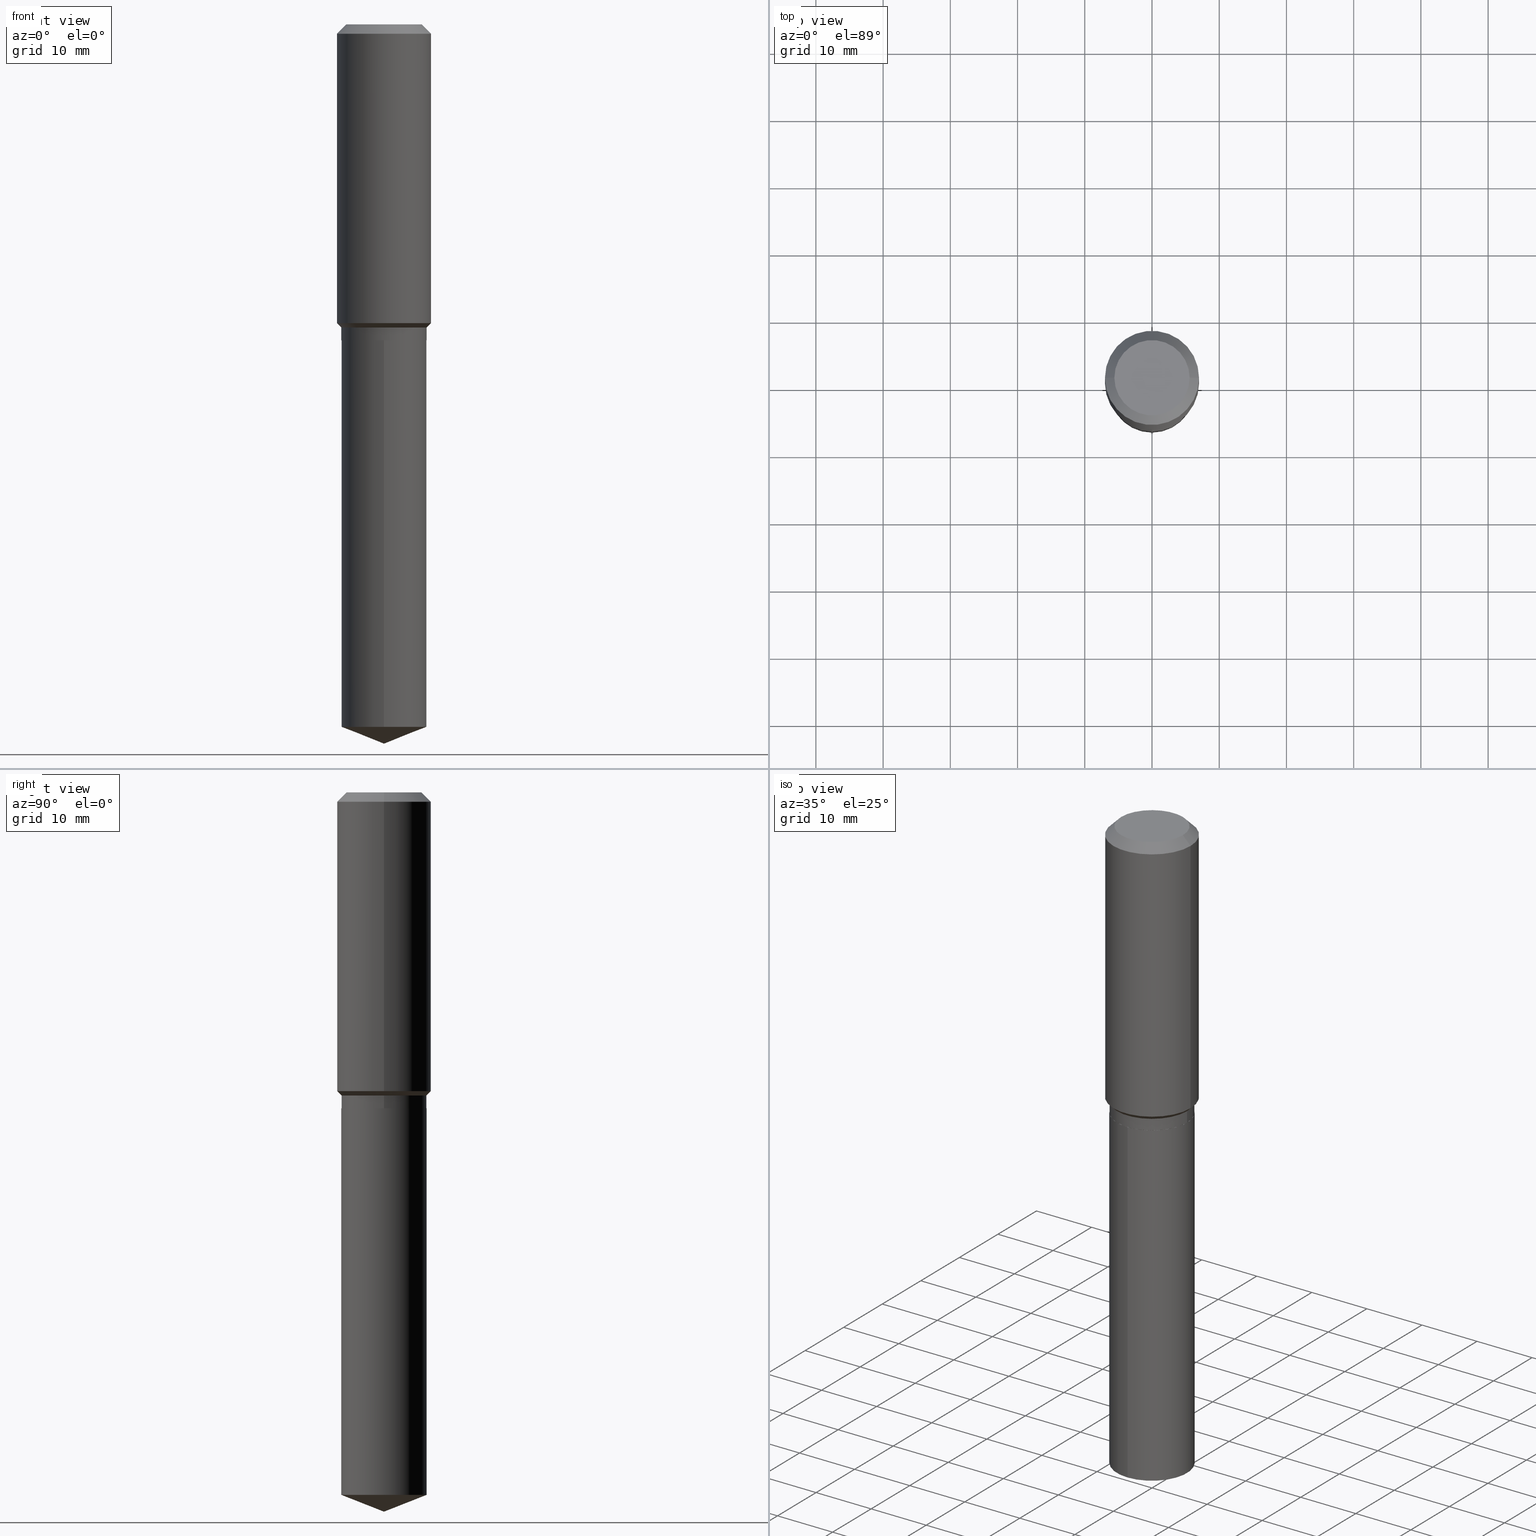
[diagram: canonical four-view strip — front | top / right | iso, engineering-drawing reading convention]
A machine part, canonical four-view strip (front | top / right | iso — engineering-drawing reading convention). The complete STEP part file that produces these views, byte-faithful:
ISO-10303-21;
HEADER;
FILE_DESCRIPTION (( 'STEP AP203' ),
    '1' );
FILE_NAME ('56428.STEP',
    '2024-04-24T17:35:44',
    ( '' ),
    ( '' ),
    'SwSTEP 2.0',
    'SolidWorks 2023',
    '' );
FILE_SCHEMA (( 'CONFIG_CONTROL_DESIGN' ));
ENDSEC;

DATA;
#1 = ADVANCED_FACE ( 'NONE', ( #217 ), #359, .F. ) ;
#2 = FACE_OUTER_BOUND ( 'NONE', #81, .T. ) ;
#3 = CARTESIAN_POINT ( 'NONE',  ( 4.523872744561885153E-29, -6.458891328725936072E-15, -1.849900000000000322 ) ) ;
#4 = AXIS2_PLACEMENT_3D ( 'NONE', #307, #468, #281 ) ;
#5 = PERSON_AND_ORGANIZATION ( #222, #179 ) ;
#6 = DIRECTION ( 'NONE',  ( -2.445468806185136597E-29, 3.491481338843145583E-15, 1.000000000000000000 ) ) ;
#7 = CIRCLE ( 'NONE', #136, 0.2500000000000000000 ) ;
#8 = DIRECTION ( 'NONE',  ( -2.445311511175715236E-29, 3.491706594249313173E-15, 1.000000000000000000 ) ) ;
#9 = EDGE_CURVE ( 'NONE', #241, #478, #135, .T. ) ;
#10 = CARTESIAN_POINT ( 'NONE',  ( 1.347942405969256063E-30, -1.924504513970354330E-16, -0.05512000000000035621 ) ) ;
#11 = VERTEX_POINT ( 'NONE', #286 ) ;
#12 = CARTESIAN_POINT ( 'NONE',  ( 0.2500000000000000555, -8.204631998147503539E-15, -1.849900000000000322 ) ) ;
#13 = DIRECTION ( 'NONE',  ( -0.7071067811866441621, 7.493145998870704414E-15, 0.7071067811864508723 ) ) ;
#14 = VERTEX_POINT ( 'NONE', #218 ) ;
#15 = DIRECTION ( 'NONE',  ( -2.445311511175715236E-29, 3.491706594249313173E-15, 1.000000000000000000 ) ) ;
#16 = DATE_AND_TIME ( #247, #114 ) ;
#17 = AXIS2_PLACEMENT_3D ( 'NONE', #377, #461, #45 ) ;
#18 = AXIS2_PLACEMENT_3D ( 'NONE', #348, #174, #229 ) ;
#19 = ORIENTED_EDGE ( 'NONE', *, *, #485, .T. ) ;
#20 = LINE ( 'NONE', #142, #196 ) ;
#21 = ORIENTED_EDGE ( 'NONE', *, *, #322, .T. ) ;
#22 = AXIS2_PLACEMENT_3D ( 'NONE', #256, #446, #402 ) ;
#23 = AXIS2_PLACEMENT_3D ( 'NONE', #232, #195, #308 ) ;
#24 = EDGE_LOOP ( 'NONE', ( #119, #309, #425, #421 ) ) ;
#25 = EDGE_CURVE ( 'NONE', #467, #432, #253, .T. ) ;
#26 = APPROVAL_DATE_TIME ( #252, #28 ) ;
#27 = CARTESIAN_POINT ( 'NONE',  ( 0.2756000000000001227, -1.924504513970336137E-15, 1.343874319409360548E-29 ) ) ;
#28 = APPROVAL ( #320, 'UNSPECIFIED' ) ;
#29 = VECTOR ( 'NONE', #488, 39.37007874015748143 ) ;
#30 = ADVANCED_FACE ( 'NONE', ( #355 ), #194, .T. ) ;
#31 = LINE ( 'NONE', #75, #160 ) ;
#32 = FACE_OUTER_BOUND ( 'NONE', #352, .T. ) ;
#33 =( NAMED_UNIT ( * ) PLANE_ANGLE_UNIT ( ) SI_UNIT ( $, .RADIAN. ) );
#34 = CC_DESIGN_SECURITY_CLASSIFICATION ( #215, ( #71 ) ) ;
#35 = AXIS2_PLACEMENT_3D ( 'NONE', #445, #104, #351 ) ;
#36 = FACE_OUTER_BOUND ( 'NONE', #167, .T. ) ;
#37 = AXIS2_PLACEMENT_3D ( 'NONE', #321, #361, #401 ) ;
#38 = FACE_OUTER_BOUND ( 'NONE', #92, .T. ) ;
#39 = DIRECTION ( 'NONE',  ( 1.000000000000000000, -6.982962677686265133E-15, 0.000000000000000000 ) ) ;
#40 = DIRECTION ( 'NONE',  ( 0.7071067811865453523, -7.319954787623248157E-15, -0.7071067811865496822 ) ) ;
#41 = APPLICATION_CONTEXT ( 'configuration controlled 3d designs of mechanical parts and assemblies' ) ;
#42 = CARTESIAN_POINT ( 'NONE',  ( 1.347942405969256063E-30, -1.924504513970354330E-16, -0.05512000000000035621 ) ) ;
#43 = DIRECTION ( 'NONE',  ( 6.982962677686265922E-15, 1.000000000000000000, -3.491706594249313568E-15 ) ) ;
#44 = ORIENTED_EDGE ( 'NONE', *, *, #372, .T. ) ;
#45 = DIRECTION ( 'NONE',  ( 1.000000000000000000, -6.982962677686265922E-15, 4.876176775795935793E-29 ) ) ;
#46 = CC_DESIGN_PERSON_AND_ORGANIZATION_ASSIGNMENT ( #389, #58, ( #178 ) ) ;
#47 = VECTOR ( 'NONE', #466, 39.37007874015748143 ) ;
#48 = APPROVAL_STATUS ( 'not_yet_approved' ) ;
#49 = CARTESIAN_POINT ( 'NONE',  ( -0.2494999999999999996, -4.687832943673907221E-15, -1.850400000000000267 ) ) ;
#50 = CARTESIAN_POINT ( 'NONE',  ( 4.341685318501092485E-29, -6.198775968982121785E-15, -1.775400000000000311 ) ) ;
#51 = VERTEX_POINT ( 'NONE', #358 ) ;
#52 = CARTESIAN_POINT ( 'NONE',  ( -8.597069640853713497E-28, 1.227600171667914887E-13, 35.15747874015747954 ) ) ;
#53 = ORIENTED_EDGE ( 'NONE', *, *, #330, .T. ) ;
#54 = CARTESIAN_POINT ( 'NONE',  ( 0.2756000000000000116, -2.083203699582869812E-15, -0.05512000000000035621 ) ) ;
#55 = EDGE_CURVE ( 'NONE', #478, #409, #463, .T. ) ;
#56 = ORIENTED_EDGE ( 'NONE', *, *, #480, .F. ) ;
#57 = CARTESIAN_POINT ( 'NONE',  ( 4.525095478964977394E-29, -6.460637069395357576E-15, -1.850400000000000267 ) ) ;
#58 = PERSON_AND_ORGANIZATION_ROLE ( 'design_owner' ) ;
#59 = CARTESIAN_POINT ( 'NONE',  ( -0.2756000000000000116, -1.192666469297548903E-15, -0.05512000000000035621 ) ) ;
#60 = CARTESIAN_POINT ( 'NONE',  ( 0.000000000000000000, 0.000000000000000000, 0.000000000000000000 ) ) ;
#61 = CIRCLE ( 'NONE', #259, 0.2204800000000000093 ) ;
#62 = CYLINDRICAL_SURFACE ( 'NONE', #37, 0.2500000000000000000 ) ;
#63 = ORIENTED_EDGE ( 'NONE', *, *, #109, .F. ) ;
#64 = CARTESIAN_POINT ( 'NONE',  ( 4.525095478964977394E-29, -6.460637069395357576E-15, -1.850400000000000267 ) ) ;
#65 = VERTEX_POINT ( 'NONE', #111 ) ;
#66 =( CONVERSION_BASED_UNIT ( 'INCH', #275 ) LENGTH_UNIT ( ) NAMED_UNIT ( #305 ) );
#67 = APPROVAL_PERSON_ORGANIZATION ( #193, #28, #311 ) ;
#68 = EDGE_LOOP ( 'NONE', ( #481, #233, #284, #342 ) ) ;
#69 = DIRECTION ( 'NONE',  ( -6.982962677686265922E-15, -1.000000000000000000, 4.370956789862821150E-15 ) ) ;
#70 = ADVANCED_FACE ( 'NONE', ( #32 ), #406, .T. ) ;
#71 = PRODUCT_DEFINITION_FORMATION_WITH_SPECIFIED_SOURCE ( 'ANY', '', #178, .NOT_KNOWN. ) ;
#72 = CC_DESIGN_PERSON_AND_ORGANIZATION_ASSIGNMENT ( #267, #131, ( #71 ) ) ;
#73 = VECTOR ( 'NONE', #454, 39.37007874015748143 ) ;
#74 = AXIS2_PLACEMENT_3D ( 'NONE', #158, #127, #459 ) ;
#75 = CARTESIAN_POINT ( 'NONE',  ( -0.2756000000000001227, 1.958255779754836984E-15, -1.355658510874252567E-29 ) ) ;
#76 = CC_DESIGN_APPROVAL ( #28, ( #215 ) ) ;
#77 = CALENDAR_DATE ( 2024, 24, 4 ) ;
#78 = VECTOR ( 'NONE', #242, 39.37007874015748854 ) ;
#79 = CONICAL_SURFACE ( 'NONE', #347, 99.94676754583932166, 1.195550537616117293 ) ;
#80 =( NAMED_UNIT ( * ) SI_UNIT ( $, .STERADIAN. ) SOLID_ANGLE_UNIT ( ) );
#81 = EDGE_LOOP ( 'NONE', ( #212, #418, #436, #333 ) ) ;
#82 = ADVANCED_FACE ( 'NONE', ( #2 ), #153, .T. ) ;
#83 = DIRECTION ( 'NONE',  ( -6.982962677686265922E-15, -1.000000000000000000, 3.498627837350027099E-15 ) ) ;
#84 = ORIENTED_EDGE ( 'NONE', *, *, #157, .F. ) ;
#85 = APPROVAL_ROLE ( '' ) ;
#86 = DIRECTION ( 'NONE',  ( -2.445311511175715236E-29, 3.491706594249313173E-15, 1.000000000000000000 ) ) ;
#87 = CARTESIAN_POINT ( 'NONE',  ( 1.030111927197881828E-28, -1.470916319893465635E-14, -4.212600000000000122 ) ) ;
#88 = ORIENTED_EDGE ( 'NONE', *, *, #322, .F. ) ;
#89 = CIRCLE ( 'NONE', #484, 0.2500000000000000555 ) ;
#90 = DIRECTION ( 'NONE',  ( 1.000000000000000000, -6.982962677686267499E-15, 0.000000000000000000 ) ) ;
#91 = CC_DESIGN_APPROVAL ( #204, ( #71 ) ) ;
#92 = EDGE_LOOP ( 'NONE', ( #317, #188 ) ) ;
#93 = DATE_AND_TIME ( #433, #180 ) ;
#94 = DIRECTION ( 'NONE',  ( -2.445468806185136597E-29, 3.491481338843145583E-15, 1.000000000000000000 ) ) ;
#95 = ORIENTED_EDGE ( 'NONE', *, *, #327, .F. ) ;
#96 = FACE_OUTER_BOUND ( 'NONE', #24, .T. ) ;
#97 = CARTESIAN_POINT ( 'NONE',  ( 1.030170649383189397E-28, -1.470832957372751352E-14, -4.212600000000000122 ) ) ;
#98 = VERTEX_POINT ( 'NONE', #369 ) ;
#99 = PERSON_AND_ORGANIZATION ( #222, #179 ) ;
#100 = CIRCLE ( 'NONE', #367, 0.2500000000000000555 ) ;
#101 = AXIS2_PLACEMENT_3D ( 'NONE', #10, #166, #410 ) ;
#102 = ORIENTED_EDGE ( 'NONE', *, *, #55, .F. ) ;
#103 = CARTESIAN_POINT ( 'NONE',  ( 0.2494999999999999996, -8.202886257478081246E-15, -1.850400000000000267 ) ) ;
#104 = DIRECTION ( 'NONE',  ( -2.445311511175715236E-29, 3.491706594249313173E-15, 1.000000000000000000 ) ) ;
#105 = DESIGN_CONTEXT ( 'detailed design', #41, 'design' ) ;
#106 = DIRECTION ( 'NONE',  ( -2.445468806185136597E-29, 3.491481338843145583E-15, 1.000000000000000000 ) ) ;
#107 = CIRCLE ( 'NONE', #314, 0.2500000000000000000 ) ;
#108 = CARTESIAN_POINT ( 'NONE',  ( 4.525095478964977394E-29, -6.460637069395357576E-15, -1.850400000000000267 ) ) ;
#109 = EDGE_CURVE ( 'NONE', #11, #409, #100, .T. ) ;
#110 = SHAPE_DEFINITION_REPRESENTATION ( #435, #184 ) ;
#111 = CARTESIAN_POINT ( 'NONE',  ( 0.2756000000000002337, -8.033898560678073390E-15, -1.749800000000000244 ) ) ;
#112 = LOCAL_TIME ( 13, 35, 44.00000000000000000, #197 ) ;
#113 = CIRCLE ( 'NONE', #74, 0.2494999999999999996 ) ;
#114 = LOCAL_TIME ( 13, 35, 44.00000000000000000, #473 ) ;
#115 = ADVANCED_FACE ( 'NONE', ( #38 ), #301, .F. ) ;
#116 = ORIENTED_EDGE ( 'NONE', *, *, #278, .T. ) ;
#117 = CARTESIAN_POINT ( 'NONE',  ( 0.2500000000000000000, -7.944516638403687674E-15, -1.775400000000000311 ) ) ;
#118 = CARTESIAN_POINT ( 'NONE',  ( 4.523872744561885153E-29, -6.458891328725936072E-15, -1.849900000000000322 ) ) ;
#119 = ORIENTED_EDGE ( 'NONE', *, *, #187, .F. ) ;
#120 = PLANE ( 'NONE',  #303 ) ;
#121 = CYLINDRICAL_SURFACE ( 'NONE', #219, 0.2500000000000000000 ) ;
#122 = VERTEX_POINT ( 'NONE', #163 ) ;
#123 = AXIS2_PLACEMENT_3D ( 'NONE', #108, #489, #405 ) ;
#124 = DIRECTION ( 'NONE',  ( -2.445468806185136597E-29, 3.491481338843145583E-15, 1.000000000000000000 ) ) ;
#125 = CONICAL_SURFACE ( 'NONE', #285, 99.94676754583932166, 1.195550537616117293 ) ;
#126 = EDGE_CURVE ( 'NONE', #122, #98, #246, .T. ) ;
#127 = DIRECTION ( 'NONE',  ( -2.445468806185136597E-29, 3.491481338843145583E-15, 1.000000000000000000 ) ) ;
#128 = CARTESIAN_POINT ( 'NONE',  ( -8.597069640853713497E-28, 1.227600171667914887E-13, 35.15747874015747954 ) ) ;
#129 = DIRECTION ( 'NONE',  ( -6.982962677686265922E-15, -1.000000000000000000, 3.278217592397115862E-15 ) ) ;
#130 = ORIENTED_EDGE ( 'NONE', *, *, #251, .T. ) ;
#131 = PERSON_AND_ORGANIZATION_ROLE ( 'design_supplier' ) ;
#132 = DIRECTION ( 'NONE',  ( -1.000000000000000000, 6.982962677686269077E-15, 0.000000000000000000 ) ) ;
#133 = ORIENTED_EDGE ( 'NONE', *, *, #202, .F. ) ;
#134 = CC_DESIGN_APPROVAL ( #356, ( #450 ) ) ;
#135 = CIRCLE ( 'NONE', #123, 0.2494999999999999996 ) ;
#136 = AXIS2_PLACEMENT_3D ( 'NONE', #264, #15, #315 ) ;
#137 = ORIENTED_EDGE ( 'NONE', *, *, #291, .T. ) ;
#138 = EDGE_CURVE ( 'NONE', #241, #11, #387, .T. ) ;
#139 = FACE_OUTER_BOUND ( 'NONE', #68, .T. ) ;
#140 = VERTEX_POINT ( 'NONE', #198 ) ;
#141 = CYLINDRICAL_SURFACE ( 'NONE', #254, 0.2756000000000001227 ) ;
#142 = CARTESIAN_POINT ( 'NONE',  ( 0.2500000000000000000, -1.745740669421566678E-15, 1.219044193948983948E-29 ) ) ;
#143 = ORIENTED_EDGE ( 'NONE', *, *, #138, .F. ) ;
#144 = DIRECTION ( 'NONE',  ( 1.000000000000000000, -6.982962677686267499E-15, 4.876176775795935793E-29 ) ) ;
#145 = EDGE_CURVE ( 'NONE', #140, #65, #392, .T. ) ;
#146 = CIRCLE ( 'NONE', #407, 0.2756000000000002337 ) ;
#147 = MANIFOLD_SOLID_BREP ( 'Body-Move/Copy2[2]', #272 ) ;
#148 = CC_DESIGN_PERSON_AND_ORGANIZATION_ASSIGNMENT ( #236, #340, ( #215 ) ) ;
#149 = ORIENTED_EDGE ( 'NONE', *, *, #299, .F. ) ;
#150 = ADVANCED_FACE ( 'NONE', ( #271 ), #429, .T. ) ;
#151 = AXIS2_PLACEMENT_3D ( 'NONE', #235, #169, #336 ) ;
#152 = APPROVAL_PERSON_ORGANIZATION ( #248, #356, #395 ) ;
#153 = CYLINDRICAL_SURFACE ( 'NONE', #295, 0.2500000000000000000 ) ;
#154 = CONICAL_SURFACE ( 'NONE', #431, 0.2494999999999999996, 0.7853981633975849475 ) ;
#155 = DIRECTION ( 'NONE',  ( -2.445468806185136877E-29, 3.491481338843145188E-15, 1.000000000000000000 ) ) ;
#156 = ORIENTED_EDGE ( 'NONE', *, *, #126, .T. ) ;
#157 = EDGE_CURVE ( 'NONE', #297, #98, #332, .T. ) ;
#158 = CARTESIAN_POINT ( 'NONE',  ( 4.525095478964977394E-29, -6.460637069395357576E-15, -1.850400000000000267 ) ) ;
#159 = AXIS2_PLACEMENT_3D ( 'NONE', #357, #213, #175 ) ;
#160 = VECTOR ( 'NONE', #155, 39.37007874015748143 ) ;
#161 = LINE ( 'NONE', #54, #324 ) ;
#162 = ORIENTED_EDGE ( 'NONE', *, *, #55, .T. ) ;
#163 = CARTESIAN_POINT ( 'NONE',  ( 1.030111927197881828E-28, -1.470916319893465635E-14, -4.212600000000000122 ) ) ;
#164 = CALENDAR_DATE ( 2024, 24, 4 ) ;
#165 = DIRECTION ( 'NONE',  ( -2.445468806185136597E-29, 3.491481338843145583E-15, 1.000000000000000000 ) ) ;
#166 = DIRECTION ( 'NONE',  ( -2.445468806185136597E-29, 3.491481338843145583E-15, 1.000000000000000000 ) ) ;
#167 = EDGE_LOOP ( 'NONE', ( #130, #472, #438, #102 ) ) ;
#168 = CARTESIAN_POINT ( 'NONE',  ( 1.776356839400351044E-15, 0.2499999999999935052, -1.850400000000001155 ) ) ;
#169 = DIRECTION ( 'NONE',  ( -2.445468806185136597E-29, 3.491481338843145583E-15, 1.000000000000000000 ) ) ;
#170 = EDGE_CURVE ( 'NONE', #65, #51, #400, .T. ) ;
#171 = ORIENTED_EDGE ( 'NONE', *, *, #126, .F. ) ;
#172 = AXIS2_PLACEMENT_3D ( 'NONE', #64, #349, #343 ) ;
#173 = ORIENTED_EDGE ( 'NONE', *, *, #177, .T. ) ;
#174 = DIRECTION ( 'NONE',  ( 2.445468806185136597E-29, -3.491481338843145583E-15, -1.000000000000000000 ) ) ;
#175 = DIRECTION ( 'NONE',  ( 1.000000000000000000, -6.982962677686266711E-15, 0.000000000000000000 ) ) ;
#176 = ORIENTED_EDGE ( 'NONE', *, *, #456, .F. ) ;
#177 = EDGE_CURVE ( 'NONE', #329, #338, #364, .T. ) ;
#178 = PRODUCT ( '56428', '56428', '', ( #341 ) ) ;
#179 = ORGANIZATION ( 'UNSPECIFIED', 'UNSPECIFIED', '' ) ;
#180 = LOCAL_TIME ( 13, 35, 44.00000000000000000, #339 ) ;
#181 = EDGE_CURVE ( 'NONE', #329, #65, #282, .T. ) ;
#182 = AXIS2_PLACEMENT_3D ( 'NONE', #294, #328, #263 ) ;
#183 = ADVANCED_FACE ( 'NONE', ( #424 ), #79, .T. ) ;
#184 = ADVANCED_BREP_SHAPE_REPRESENTATION ( '56428', ( #287, #147, #185 ), #319 ) ;
#185 = AXIS2_PLACEMENT_3D ( 'NONE', #60, #487, #448 ) ;
#186 = COORDINATED_UNIVERSAL_TIME_OFFSET ( 5, 0, .BEHIND. ) ;
#187 = EDGE_CURVE ( 'NONE', #14, #190, #452, .T. ) ;
#188 = ORIENTED_EDGE ( 'NONE', *, *, #9, .F. ) ;
#189 = CARTESIAN_POINT ( 'NONE',  ( 4.525095478964977954E-29, -6.460637069395358365E-15, -1.850400000000000489 ) ) ;
#190 = VERTEX_POINT ( 'NONE', #469 ) ;
#191 = DIRECTION ( 'NONE',  ( 2.445468806185136597E-29, -3.491481338843145583E-15, -1.000000000000000000 ) ) ;
#192 = DIRECTION ( 'NONE',  ( 2.445311511175714395E-29, -3.491706594249313568E-15, -1.000000000000000000 ) ) ;
#193 = PERSON_AND_ORGANIZATION ( #222, #179 ) ;
#194 = CONICAL_SURFACE ( 'NONE', #430, 0.2500000000000000000, 0.7853981633974502774 ) ;
#195 = DIRECTION ( 'NONE',  ( -2.445468806185136597E-29, 3.491481338843145583E-15, 1.000000000000000000 ) ) ;
#196 = VECTOR ( 'NONE', #396, 39.37007874015748143 ) ;
#197 = COORDINATED_UNIVERSAL_TIME_OFFSET ( 5, 0, .BEHIND. ) ;
#198 = CARTESIAN_POINT ( 'NONE',  ( -0.2756000000000002337, -4.151138266952899480E-15, -1.749800000000000244 ) ) ;
#199 = APPROVAL_DATE_TIME ( #325, #204 ) ;
#200 = DIRECTION ( 'NONE',  ( -2.445468806185136597E-29, 3.491481338843145583E-15, 1.000000000000000000 ) ) ;
#201 = ORIENTED_EDGE ( 'NONE', *, *, #25, .T. ) ;
#202 = EDGE_CURVE ( 'NONE', #122, #297, #426, .T. ) ;
#203 = EDGE_LOOP ( 'NONE', ( #171, #386, #399 ) ) ;
#204 = APPROVAL ( #374, 'UNSPECIFIED' ) ;
#205 = ORIENTED_EDGE ( 'NONE', *, *, #9, .T. ) ;
#206 = VECTOR ( 'NONE', #371, 39.37007874015748143 ) ;
#207 = CARTESIAN_POINT ( 'NONE',  ( -1.745740669421521318E-15, -0.2500000000000064393, -1.850399999999999379 ) ) ;
#208 = LINE ( 'NONE', #318, #360 ) ;
#209 = EDGE_CURVE ( 'NONE', #338, #329, #464, .T. ) ;
#210 = EDGE_LOOP ( 'NONE', ( #133, #156, #84 ) ) ;
#211 = DATE_TIME_ROLE ( 'classification_date' ) ;
#212 = ORIENTED_EDGE ( 'NONE', *, *, #157, .T. ) ;
#213 = DIRECTION ( 'NONE',  ( -2.445468806185136597E-29, 3.491481338843145583E-15, 1.000000000000000000 ) ) ;
#214 = CONICAL_SURFACE ( 'NONE', #18, 0.2756000000000000116, 0.7853981633974452814 ) ;
#215 = SECURITY_CLASSIFICATION ( '', '', #443 ) ;
#216 = EDGE_CURVE ( 'NONE', #51, #458, #296, .T. ) ;
#217 = FACE_OUTER_BOUND ( 'NONE', #225, .T. ) ;
#218 = CARTESIAN_POINT ( 'NONE',  ( 0.2204800000000000093, -1.797903149065768707E-15, 3.860086710924123164E-18 ) ) ;
#219 = AXIS2_PLACEMENT_3D ( 'NONE', #376, #165, #300 ) ;
#220 = EDGE_CURVE ( 'NONE', #140, #458, #31, .T. ) ;
#221 = CARTESIAN_POINT ( 'NONE',  ( -0.2494999999999999996, -4.685183716499796809E-15, -1.850400000000000267 ) ) ;
#222 = PERSON ( 'UNSPECIFIED', 'UNSPECIFIED', 'UNSPECIFIED', ('UNSPECIFIED'), ('UNSPECIFIED'), ('UNSPECIFIED') ) ;
#223 = DIRECTION ( 'NONE',  ( -2.445311511175715516E-29, 3.491706594249313568E-15, 1.000000000000000000 ) ) ;
#224 = ORIENTED_EDGE ( 'NONE', *, *, #291, .F. ) ;
#225 = EDGE_LOOP ( 'NONE', ( #21, #228 ) ) ;
#226 = DIRECTION ( 'NONE',  ( -2.445311511175715236E-29, 3.491706594249313173E-15, 1.000000000000000000 ) ) ;
#227 = DIRECTION ( 'NONE',  ( -0.7071067811865489050, 7.493145998870358893E-15, 0.7071067811865461294 ) ) ;
#228 = ORIENTED_EDGE ( 'NONE', *, *, #187, .T. ) ;
#229 = DIRECTION ( 'NONE',  ( -1.000000000000000000, 6.982962677686269077E-15, 0.000000000000000000 ) ) ;
#230 = DIRECTION ( 'NONE',  ( 1.000000000000000000, -6.982962677686267499E-15, 4.876176775795935793E-29 ) ) ;
#231 = CARTESIAN_POINT ( 'NONE',  ( -0.2500000000000000000, -4.552476809453778464E-15, -1.775400000000000311 ) ) ;
#232 = CARTESIAN_POINT ( 'NONE',  ( -9.439721640706190018E-47, 1.347742071746724849E-32, 3.860086710912454339E-18 ) ) ;
#233 = ORIENTED_EDGE ( 'NONE', *, *, #145, .T. ) ;
#234 = ORIENTED_EDGE ( 'NONE', *, *, #383, .F. ) ;
#235 = CARTESIAN_POINT ( 'NONE',  ( 4.279081317062752596E-29, -6.109394046707736858E-15, -1.749800000000000244 ) ) ;
#236 = PERSON_AND_ORGANIZATION ( #222, #179 ) ;
#237 = ORIENTED_EDGE ( 'NONE', *, *, #403, .F. ) ;
#238 = DATE_TIME_ROLE ( 'creation_date' ) ;
#239 = CARTESIAN_POINT ( 'NONE',  ( -0.2756000000000000116, 1.732054062573300039E-15, -0.05512000000000035621 ) ) ;
#240 = DIRECTION ( 'NONE',  ( 1.000000000000000000, -6.982962677686266711E-15, 0.000000000000000000 ) ) ;
#241 = VERTEX_POINT ( 'NONE', #221 ) ;
#242 = DIRECTION ( 'NONE',  ( 6.611014441532060278E-15, 0.9304175679820263500, 0.3665012267242925281 ) ) ;
#243 = ADVANCED_FACE ( 'NONE', ( #460 ), #121, .T. ) ;
#244 = DIRECTION ( 'NONE',  ( -6.982962677686265922E-15, -1.000000000000000000, 3.498627837350027099E-15 ) ) ;
#245 = EDGE_LOOP ( 'NONE', ( #95, #88, #441, #19 ) ) ;
#246 = LINE ( 'NONE', #97, #78 ) ;
#247 = CALENDAR_DATE ( 2024, 24, 4 ) ;
#248 = PERSON_AND_ORGANIZATION ( #222, #179 ) ;
#249 = VECTOR ( 'NONE', #227, 39.37007874015748143 ) ;
#250 = ORIENTED_EDGE ( 'NONE', *, *, #181, .T. ) ;
#251 = EDGE_CURVE ( 'NONE', #478, #241, #113, .T. ) ;
#252 = DATE_AND_TIME ( #477, #283 ) ;
#253 = CIRCLE ( 'NONE', #35, 0.2500000000000000000 ) ;
#254 = AXIS2_PLACEMENT_3D ( 'NONE', #420, #310, #230 ) ;
#255 = ADVANCED_FACE ( 'NONE', ( #331 ), #120, .F. ) ;
#256 = CARTESIAN_POINT ( 'NONE',  ( -4.719860820353095009E-47, 6.738710358733624243E-33, 1.930043355456227170E-18 ) ) ;
#257 = AXIS2_PLACEMENT_3D ( 'NONE', #362, #404, #69 ) ;
#258 = VECTOR ( 'NONE', #223, 39.37007874015748143 ) ;
#259 = AXIS2_PLACEMENT_3D ( 'NONE', #335, #6, #382 ) ;
#260 = EDGE_LOOP ( 'NONE', ( #143, #205, #162, #63 ) ) ;
#261 = ADVANCED_FACE ( 'NONE', ( #380 ), #465, .T. ) ;
#262 = DIRECTION ( 'NONE',  ( -6.982962677686265922E-15, -1.000000000000000000, 3.278217592397115862E-15 ) ) ;
#263 = DIRECTION ( 'NONE',  ( 1.000000000000000000, -6.982962677686266711E-15, 0.000000000000000000 ) ) ;
#264 = CARTESIAN_POINT ( 'NONE',  ( 4.525095478964977394E-29, -6.460637069395357576E-15, -1.850400000000000267 ) ) ;
#265 = ORIENTED_EDGE ( 'NONE', *, *, #383, .T. ) ;
#266 = DIRECTION ( 'NONE',  ( 1.000000000000000000, -6.982962677686269077E-15, 0.000000000000000000 ) ) ;
#267 = PERSON_AND_ORGANIZATION ( #222, #179 ) ;
#268 = LINE ( 'NONE', #462, #206 ) ;
#269 = CARTESIAN_POINT ( 'NONE',  ( 1.006060187556577327E-28, -1.436489143501894089E-14, -4.114122381096264824 ) ) ;
#270 = ORIENTED_EDGE ( 'NONE', *, *, #170, .F. ) ;
#271 = FACE_OUTER_BOUND ( 'NONE', #475, .T. ) ;
#272 = CLOSED_SHELL ( 'NONE', ( #365, #434, #150, #30, #243, #363, #70, #306, #440, #1, #115, #408 ) ) ;
#273 = ORIENTED_EDGE ( 'NONE', *, *, #456, .T. ) ;
#274 = CARTESIAN_POINT ( 'NONE',  ( 4.279081317062752596E-29, -6.109394046707736858E-15, -1.749800000000000244 ) ) ;
#275 = LENGTH_MEASURE_WITH_UNIT ( LENGTH_MEASURE( 0.02539999999999999897 ), #451 );
#276 = ORIENTED_EDGE ( 'NONE', *, *, #209, .T. ) ;
#277 = FACE_OUTER_BOUND ( 'NONE', #260, .T. ) ;
#278 = EDGE_CURVE ( 'NONE', #409, #11, #89, .T. ) ;
#279 = EDGE_LOOP ( 'NONE', ( #149, #53, #44, #237 ) ) ;
#280 = APPROVAL_DATE_TIME ( #437, #356 ) ;
#281 = DIRECTION ( 'NONE',  ( 1.000000000000000000, -6.982962677686265922E-15, 0.000000000000000000 ) ) ;
#282 = LINE ( 'NONE', #439, #47 ) ;
#283 = LOCAL_TIME ( 13, 35, 44.00000000000000000, #344 ) ;
#284 = ORIENTED_EDGE ( 'NONE', *, *, #170, .T. ) ;
#285 = AXIS2_PLACEMENT_3D ( 'NONE', #52, #388, #244 ) ;
#286 = CARTESIAN_POINT ( 'NONE',  ( -0.2500000000000000555, -4.552476809453777675E-15, -1.849900000000000322 ) ) ;
#287 = MANIFOLD_SOLID_BREP ( 'Body-Move/Copy2[1]', #323 ) ;
#288 = PERSON_AND_ORGANIZATION_ROLE ( 'creator' ) ;
#289 = ADVANCED_FACE ( 'NONE', ( #298 ), #125, .T. ) ;
#290 = CIRCLE ( 'NONE', #4, 0.2756000000000000116 ) ;
#291 = EDGE_CURVE ( 'NONE', #11, #338, #208, .T. ) ;
#292 = APPLICATION_CONTEXT ( 'configuration controlled 3d designs of mechanical parts and assemblies' ) ;
#293 = ORIENTED_EDGE ( 'NONE', *, *, #480, .T. ) ;
#294 = CARTESIAN_POINT ( 'NONE',  ( 4.341685318501092485E-29, -6.198775968982121785E-15, -1.775400000000000311 ) ) ;
#295 = AXIS2_PLACEMENT_3D ( 'NONE', #189, #226, #262 ) ;
#296 = CIRCLE ( 'NONE', #101, 0.2756000000000000116 ) ;
#297 = VERTEX_POINT ( 'NONE', #483 ) ;
#298 = FACE_OUTER_BOUND ( 'NONE', #210, .T. ) ;
#299 = EDGE_CURVE ( 'NONE', #98, #432, #268, .T. ) ;
#300 = DIRECTION ( 'NONE',  ( 1.000000000000000000, -6.982962677686266711E-15, 4.876176775795935793E-29 ) ) ;
#301 = PLANE ( 'NONE',  #17 ) ;
#302 = AXIS2_PLACEMENT_3D ( 'NONE', #312, #106, #144 ) ;
#303 = AXIS2_PLACEMENT_3D ( 'NONE', #416, #192, #43 ) ;
#304 = EDGE_LOOP ( 'NONE', ( #173, #265, #176, #379 ) ) ;
#305 = DIMENSIONAL_EXPONENTS ( 1.000000000000000000, 0.000000000000000000, 0.000000000000000000, 0.000000000000000000, 0.000000000000000000, 0.000000000000000000, 0.000000000000000000 ) ;
#306 = ADVANCED_FACE ( 'NONE', ( #139 ), #141, .T. ) ;
#307 = CARTESIAN_POINT ( 'NONE',  ( 1.347942405969256063E-30, -1.924504513970354330E-16, -0.05512000000000035621 ) ) ;
#308 = DIRECTION ( 'NONE',  ( 1.000000000000000000, -6.982962677686266711E-15, 4.876132675269083677E-29 ) ) ;
#309 = ORIENTED_EDGE ( 'NONE', *, *, #327, .T. ) ;
#310 = DIRECTION ( 'NONE',  ( -2.445468806185136597E-29, 3.491481338843145583E-15, 1.000000000000000000 ) ) ;
#311 = APPROVAL_ROLE ( '' ) ;
#312 = CARTESIAN_POINT ( 'NONE',  ( 0.000000000000000000, 0.000000000000000000, 0.000000000000000000 ) ) ;
#313 = ORIENTED_EDGE ( 'NONE', *, *, #209, .F. ) ;
#314 = AXIS2_PLACEMENT_3D ( 'NONE', #269, #471, #391 ) ;
#315 = DIRECTION ( 'NONE',  ( -6.982962677686265922E-15, -1.000000000000000000, 3.278217592397115862E-15 ) ) ;
#316 = EDGE_LOOP ( 'NONE', ( #201, #346 ) ) ;
#317 = ORIENTED_EDGE ( 'NONE', *, *, #251, .F. ) ;
#318 = CARTESIAN_POINT ( 'NONE',  ( -0.2500000000000000000, 1.776356839400250465E-15, -1.229733772563726445E-29 ) ) ;
#319 =( GEOMETRIC_REPRESENTATION_CONTEXT ( 3 ) GLOBAL_UNCERTAINTY_ASSIGNED_CONTEXT ( ( #457 ) ) GLOBAL_UNIT_ASSIGNED_CONTEXT ( ( #66, #33, #80 ) ) REPRESENTATION_CONTEXT ( 'NONE', 'WORKASPACE' ) );
#320 = APPROVAL_STATUS ( 'not_yet_approved' ) ;
#321 = CARTESIAN_POINT ( 'NONE',  ( 0.000000000000000000, 0.000000000000000000, 0.000000000000000000 ) ) ;
#322 = EDGE_CURVE ( 'NONE', #190, #14, #61, .T. ) ;
#323 = CLOSED_SHELL ( 'NONE', ( #82, #289, #183, #261, #255 ) ) ;
#324 = VECTOR ( 'NONE', #40, 39.37007874015748143 ) ;
#325 = DATE_AND_TIME ( #77, #414 ) ;
#326 = VECTOR ( 'NONE', #378, 39.37007874015748143 ) ;
#327 = EDGE_CURVE ( 'NONE', #14, #51, #161, .T. ) ;
#328 = DIRECTION ( 'NONE',  ( -2.445468806185136597E-29, 3.491481338843145583E-15, 1.000000000000000000 ) ) ;
#329 = VERTEX_POINT ( 'NONE', #117 ) ;
#330 = EDGE_CURVE ( 'NONE', #98, #297, #107, .T. ) ;
#331 = FACE_OUTER_BOUND ( 'NONE', #316, .T. ) ;
#332 = CIRCLE ( 'NONE', #257, 0.2500000000000000000 ) ;
#333 = ORIENTED_EDGE ( 'NONE', *, *, #372, .F. ) ;
#334 = DIRECTION ( 'NONE',  ( -2.445468806185136597E-29, 3.491481338843145583E-15, 1.000000000000000000 ) ) ;
#335 = CARTESIAN_POINT ( 'NONE',  ( -9.439721640706190018E-47, 1.347742071746724849E-32, 3.860086710912454339E-18 ) ) ;
#336 = DIRECTION ( 'NONE',  ( 1.000000000000000000, -6.982962677686267499E-15, 0.000000000000000000 ) ) ;
#337 = DIRECTION ( 'NONE',  ( 1.000000000000000000, -6.982962677686266711E-15, 0.000000000000000000 ) ) ;
#338 = VERTEX_POINT ( 'NONE', #231 ) ;
#339 = COORDINATED_UNIVERSAL_TIME_OFFSET ( 5, 0, .BEHIND. ) ;
#340 = PERSON_AND_ORGANIZATION_ROLE ( 'classification_officer' ) ;
#341 = MECHANICAL_CONTEXT ( 'NONE', #292, 'mechanical' ) ;
#342 = ORIENTED_EDGE ( 'NONE', *, *, #485, .F. ) ;
#343 = DIRECTION ( 'NONE',  ( 1.000000000000000000, -6.982962677686269077E-15, 0.000000000000000000 ) ) ;
#344 = COORDINATED_UNIVERSAL_TIME_OFFSET ( 5, 0, .BEHIND. ) ;
#345 = VECTOR ( 'NONE', #13, 39.37007874015748143 ) ;
#346 = ORIENTED_EDGE ( 'NONE', *, *, #403, .T. ) ;
#347 = AXIS2_PLACEMENT_3D ( 'NONE', #128, #8, #83 ) ;
#348 = CARTESIAN_POINT ( 'NONE',  ( 1.347942405969256063E-30, -1.924504513970354330E-16, -0.05512000000000035621 ) ) ;
#349 = DIRECTION ( 'NONE',  ( -2.445468806185136597E-29, 3.491481338843145583E-15, 1.000000000000000000 ) ) ;
#350 = CARTESIAN_POINT ( 'NONE',  ( 0.2494999999999999996, -8.202886257478081246E-15, -1.850400000000000267 ) ) ;
#351 = DIRECTION ( 'NONE',  ( -6.982962677686265922E-15, -1.000000000000000000, 3.278217592397115862E-15 ) ) ;
#352 = EDGE_LOOP ( 'NONE', ( #234, #276, #250, #470 ) ) ;
#353 = LINE ( 'NONE', #417, #258 ) ;
#354 = ORIENTED_EDGE ( 'NONE', *, *, #109, .T. ) ;
#355 = FACE_OUTER_BOUND ( 'NONE', #304, .T. ) ;
#356 = APPROVAL ( #48, 'UNSPECIFIED' ) ;
#357 = CARTESIAN_POINT ( 'NONE',  ( 4.341685318501092485E-29, -6.198775968982121785E-15, -1.775400000000000311 ) ) ;
#358 = CARTESIAN_POINT ( 'NONE',  ( 0.2756000000000000116, -2.116954965367370658E-15, -0.05512000000000035621 ) ) ;
#359 = PLANE ( 'NONE',  #22 ) ;
#360 = VECTOR ( 'NONE', #397, 39.37007874015748143 ) ;
#361 = DIRECTION ( 'NONE',  ( -2.445468806185136597E-29, 3.491481338843145583E-15, 1.000000000000000000 ) ) ;
#362 = CARTESIAN_POINT ( 'NONE',  ( 1.006060187556577327E-28, -1.436489143501894089E-14, -4.114122381096264824 ) ) ;
#363 = ADVANCED_FACE ( 'NONE', ( #385 ), #62, .T. ) ;
#364 = CIRCLE ( 'NONE', #159, 0.2500000000000000000 ) ;
#365 = ADVANCED_FACE ( 'NONE', ( #36 ), #368, .T. ) ;
#366 = APPROVAL_PERSON_ORGANIZATION ( #5, #204, #85 ) ;
#367 = AXIS2_PLACEMENT_3D ( 'NONE', #118, #413, #39 ) ;
#368 = CONICAL_SURFACE ( 'NONE', #172, 0.2494999999999999996, 0.7853981633975849475 ) ;
#369 = CARTESIAN_POINT ( 'NONE',  ( 1.776356839400351044E-15, 0.2499999999999856504, -4.114122381096266601 ) ) ;
#370 = DIRECTION ( 'NONE',  ( 1.000000000000000000, -6.982962677686265133E-15, 0.000000000000000000 ) ) ;
#371 = DIRECTION ( 'NONE',  ( -2.445311511175715516E-29, 3.491706594249313568E-15, 1.000000000000000000 ) ) ;
#372 = EDGE_CURVE ( 'NONE', #297, #467, #353, .T. ) ;
#373 = LINE ( 'NONE', #239, #447 ) ;
#374 = APPROVAL_STATUS ( 'not_yet_approved' ) ;
#375 = FACE_OUTER_BOUND ( 'NONE', #245, .T. ) ;
#376 = CARTESIAN_POINT ( 'NONE',  ( 0.000000000000000000, 0.000000000000000000, 0.000000000000000000 ) ) ;
#377 = CARTESIAN_POINT ( 'NONE',  ( 7.354671176892129534E-29, -2.408523620516517008E-15, -1.850400000000000489 ) ) ;
#378 = DIRECTION ( 'NONE',  ( -6.497071151882114314E-15, -0.9304175679820237965, 0.3665012267242991340 ) ) ;
#379 = ORIENTED_EDGE ( 'NONE', *, *, #181, .F. ) ;
#380 = FACE_OUTER_BOUND ( 'NONE', #279, .T. ) ;
#381 = ORIENTED_EDGE ( 'NONE', *, *, #220, .T. ) ;
#382 = DIRECTION ( 'NONE',  ( 1.000000000000000000, -6.982962677686266711E-15, 4.876132675269083677E-29 ) ) ;
#383 = EDGE_CURVE ( 'NONE', #338, #140, #411, .T. ) ;
#384 = DIRECTION ( 'NONE',  ( -0.7071067811865453523, 2.468850131082234184E-15, -0.7071067811865496822 ) ) ;
#385 = FACE_OUTER_BOUND ( 'NONE', #393, .T. ) ;
#386 = ORIENTED_EDGE ( 'NONE', *, *, #202, .T. ) ;
#387 = LINE ( 'NONE', #49, #345 ) ;
#388 = DIRECTION ( 'NONE',  ( -2.445311511175715236E-29, 3.491706594249313173E-15, 1.000000000000000000 ) ) ;
#389 = PERSON_AND_ORGANIZATION ( #222, #179 ) ;
#390 = CC_DESIGN_DATE_AND_TIME_ASSIGNMENT ( #93, #238, ( #450 ) ) ;
#391 = DIRECTION ( 'NONE',  ( -6.982962677686265922E-15, -1.000000000000000000, 4.370956789862821150E-15 ) ) ;
#392 = CIRCLE ( 'NONE', #151, 0.2756000000000002337 ) ;
#393 = EDGE_LOOP ( 'NONE', ( #224, #354, #293, #313 ) ) ;
#394 = CONICAL_SURFACE ( 'NONE', #415, 0.2756000000000000116, 0.7853981633974452814 ) ;
#395 = APPROVAL_ROLE ( '' ) ;
#396 = DIRECTION ( 'NONE',  ( -2.445468806185136877E-29, 3.491481338843145188E-15, 1.000000000000000000 ) ) ;
#397 = DIRECTION ( 'NONE',  ( -2.445468806185136877E-29, 3.491481338843145188E-15, 1.000000000000000000 ) ) ;
#398 = EDGE_CURVE ( 'NONE', #190, #458, #373, .T. ) ;
#399 = ORIENTED_EDGE ( 'NONE', *, *, #330, .F. ) ;
#400 = LINE ( 'NONE', #27, #29 ) ;
#401 = DIRECTION ( 'NONE',  ( 1.000000000000000000, -6.982962677686266711E-15, 4.876176775795935793E-29 ) ) ;
#402 = DIRECTION ( 'NONE',  ( -1.000000000000000000, 6.982962677686265922E-15, -4.876176775795935793E-29 ) ) ;
#403 = EDGE_CURVE ( 'NONE', #432, #467, #7, .T. ) ;
#404 = DIRECTION ( 'NONE',  ( -2.445311511175715236E-29, 3.491706594249313173E-15, 1.000000000000000000 ) ) ;
#405 = DIRECTION ( 'NONE',  ( 1.000000000000000000, -6.982962677686269077E-15, 0.000000000000000000 ) ) ;
#406 = CONICAL_SURFACE ( 'NONE', #182, 0.2500000000000000000, 0.7853981633974502774 ) ;
#407 = AXIS2_PLACEMENT_3D ( 'NONE', #274, #94, #90 ) ;
#408 = ADVANCED_FACE ( 'NONE', ( #277 ), #154, .T. ) ;
#409 = VERTEX_POINT ( 'NONE', #12 ) ;
#410 = DIRECTION ( 'NONE',  ( 1.000000000000000000, -6.982962677686265922E-15, 0.000000000000000000 ) ) ;
#411 = LINE ( 'NONE', #455, #249 ) ;
#412 = ORIENTED_EDGE ( 'NONE', *, *, #177, .F. ) ;
#413 = DIRECTION ( 'NONE',  ( -2.445468806185136597E-29, 3.491481338843145583E-15, 1.000000000000000000 ) ) ;
#414 = LOCAL_TIME ( 13, 35, 44.00000000000000000, #186 ) ;
#415 = AXIS2_PLACEMENT_3D ( 'NONE', #42, #191, #132 ) ;
#416 = CARTESIAN_POINT ( 'NONE',  ( 5.937053752230627001E-29, -4.438632458404817203E-15, -1.850400000000000489 ) ) ;
#417 = CARTESIAN_POINT ( 'NONE',  ( -1.745740669421521318E-15, -0.2500000000000064393, -1.850399999999999823 ) ) ;
#418 = ORIENTED_EDGE ( 'NONE', *, *, #299, .T. ) ;
#419 = DIRECTION ( 'NONE',  ( -2.445468806185136597E-29, 3.491481338843145583E-15, 1.000000000000000000 ) ) ;
#420 = CARTESIAN_POINT ( 'NONE',  ( 0.000000000000000000, 0.000000000000000000, 0.000000000000000000 ) ) ;
#421 = ORIENTED_EDGE ( 'NONE', *, *, #398, .F. ) ;
#422 = PERSON_AND_ORGANIZATION ( #222, #179 ) ;
#423 = CARTESIAN_POINT ( 'NONE',  ( 4.525095478964977954E-29, -6.460637069395358365E-15, -1.850400000000000489 ) ) ;
#424 = FACE_OUTER_BOUND ( 'NONE', #203, .T. ) ;
#425 = ORIENTED_EDGE ( 'NONE', *, *, #216, .T. ) ;
#426 = LINE ( 'NONE', #87, #326 ) ;
#427 = EDGE_LOOP ( 'NONE', ( #116, #137, #412, #56 ) ) ;
#428 = PERSON_AND_ORGANIZATION_ROLE ( 'creator' ) ;
#429 = CYLINDRICAL_SURFACE ( 'NONE', #302, 0.2756000000000001227 ) ;
#430 = AXIS2_PLACEMENT_3D ( 'NONE', #486, #419, #240 ) ;
#431 = AXIS2_PLACEMENT_3D ( 'NONE', #57, #334, #266 ) ;
#432 = VERTEX_POINT ( 'NONE', #168 ) ;
#433 = CALENDAR_DATE ( 2024, 24, 4 ) ;
#434 = ADVANCED_FACE ( 'NONE', ( #96 ), #214, .T. ) ;
#435 = PRODUCT_DEFINITION_SHAPE ( 'NONE', 'NONE',  #450 ) ;
#436 = ORIENTED_EDGE ( 'NONE', *, *, #25, .F. ) ;
#437 = DATE_AND_TIME ( #164, #112 ) ;
#438 = ORIENTED_EDGE ( 'NONE', *, *, #278, .F. ) ;
#439 = CARTESIAN_POINT ( 'NONE',  ( 0.2500000000000000000, -7.944516638403687674E-15, -1.775400000000000311 ) ) ;
#440 = ADVANCED_FACE ( 'NONE', ( #375 ), #394, .T. ) ;
#441 = ORIENTED_EDGE ( 'NONE', *, *, #398, .T. ) ;
#442 = AXIS2_PLACEMENT_3D ( 'NONE', #50, #200, #337 ) ;
#443 = SECURITY_CLASSIFICATION_LEVEL ( 'unclassified' ) ;
#444 = PRODUCT_RELATED_PRODUCT_CATEGORY ( 'detail', '', ( #178 ) ) ;
#445 = CARTESIAN_POINT ( 'NONE',  ( 4.525095478964977394E-29, -6.460637069395357576E-15, -1.850400000000000267 ) ) ;
#446 = DIRECTION ( 'NONE',  ( 2.438088387897960049E-29, -3.491481338843145188E-15, -1.000000000000000000 ) ) ;
#447 = VECTOR ( 'NONE', #384, 39.37007874015748143 ) ;
#448 = DIRECTION ( 'NONE',  ( 1.000000000000000000, 0.000000000000000000, 0.000000000000000000 ) ) ;
#449 = CC_DESIGN_PERSON_AND_ORGANIZATION_ASSIGNMENT ( #422, #288, ( #71 ) ) ;
#450 = PRODUCT_DEFINITION ( 'UNKNOWN', '', #71, #105 ) ;
#451 =( LENGTH_UNIT ( ) NAMED_UNIT ( * ) SI_UNIT ( $, .METRE. ) );
#452 = CIRCLE ( 'NONE', #23, 0.2204800000000000093 ) ;
#453 = ORIENTED_EDGE ( 'NONE', *, *, #216, .F. ) ;
#454 = DIRECTION ( 'NONE',  ( 0.7071067811866441621, -2.468850131083269169E-15, 0.7071067811864508723 ) ) ;
#455 = CARTESIAN_POINT ( 'NONE',  ( -0.2500000000000000000, -4.422419129581871321E-15, -1.775400000000000311 ) ) ;
#456 = EDGE_CURVE ( 'NONE', #65, #140, #146, .T. ) ;
#457 = UNCERTAINTY_MEASURE_WITH_UNIT (LENGTH_MEASURE( 1.000000000000000082E-05 ), #66, 'distance_accuracy_value', 'NONE');
#458 = VERTEX_POINT ( 'NONE', #59 ) ;
#459 = DIRECTION ( 'NONE',  ( 1.000000000000000000, -6.982962677686269077E-15, 0.000000000000000000 ) ) ;
#460 = FACE_OUTER_BOUND ( 'NONE', #427, .T. ) ;
#461 = DIRECTION ( 'NONE',  ( -2.438088387897960049E-29, 3.491481338843145188E-15, 1.000000000000000000 ) ) ;
#462 = CARTESIAN_POINT ( 'NONE',  ( 1.776356839400295430E-15, 0.2499999999999935330, -1.850400000000001377 ) ) ;
#463 = LINE ( 'NONE', #103, #73 ) ;
#464 = CIRCLE ( 'NONE', #442, 0.2500000000000000000 ) ;
#465 = CYLINDRICAL_SURFACE ( 'NONE', #474, 0.2500000000000000000 ) ;
#466 = DIRECTION ( 'NONE',  ( 0.7071067811865489050, -2.468850131082271655E-15, 0.7071067811865461294 ) ) ;
#467 = VERTEX_POINT ( 'NONE', #207 ) ;
#468 = DIRECTION ( 'NONE',  ( -2.445468806185136597E-29, 3.491481338843145583E-15, 1.000000000000000000 ) ) ;
#469 = CARTESIAN_POINT ( 'NONE',  ( -0.2204800000000000093, 1.635828836874783961E-15, 3.860086710901350968E-18 ) ) ;
#470 = ORIENTED_EDGE ( 'NONE', *, *, #145, .F. ) ;
#471 = DIRECTION ( 'NONE',  ( -2.445311511175715236E-29, 3.491706594249313173E-15, 1.000000000000000000 ) ) ;
#472 = ORIENTED_EDGE ( 'NONE', *, *, #138, .T. ) ;
#473 = COORDINATED_UNIVERSAL_TIME_OFFSET ( 5, 0, .BEHIND. ) ;
#474 = AXIS2_PLACEMENT_3D ( 'NONE', #423, #86, #129 ) ;
#475 = EDGE_LOOP ( 'NONE', ( #273, #381, #453, #270 ) ) ;
#476 = APPLICATION_PROTOCOL_DEFINITION ( 'international standard', 'config_control_design', 1994, #292 ) ;
#477 = CALENDAR_DATE ( 2024, 24, 4 ) ;
#478 = VERTEX_POINT ( 'NONE', #350 ) ;
#479 = APPLICATION_PROTOCOL_DEFINITION ( 'international standard', 'config_control_design', 1994, #41 ) ;
#480 = EDGE_CURVE ( 'NONE', #409, #329, #20, .T. ) ;
#481 = ORIENTED_EDGE ( 'NONE', *, *, #220, .F. ) ;
#482 = CC_DESIGN_DATE_AND_TIME_ASSIGNMENT ( #16, #211, ( #215 ) ) ;
#483 = CARTESIAN_POINT ( 'NONE',  ( -1.745740669421465703E-15, -0.2500000000000143774, -4.114122381096263936 ) ) ;
#484 = AXIS2_PLACEMENT_3D ( 'NONE', #3, #124, #370 ) ;
#485 = EDGE_CURVE ( 'NONE', #458, #51, #290, .T. ) ;
#486 = CARTESIAN_POINT ( 'NONE',  ( 4.341685318501092485E-29, -6.198775968982121785E-15, -1.775400000000000311 ) ) ;
#487 = DIRECTION ( 'NONE',  ( 0.000000000000000000, 0.000000000000000000, 1.000000000000000000 ) ) ;
#488 = DIRECTION ( 'NONE',  ( -2.445468806185136877E-29, 3.491481338843145188E-15, 1.000000000000000000 ) ) ;
#489 = DIRECTION ( 'NONE',  ( -2.445468806185136597E-29, 3.491481338843145583E-15, 1.000000000000000000 ) ) ;
#490 = CC_DESIGN_PERSON_AND_ORGANIZATION_ASSIGNMENT ( #99, #428, ( #450 ) ) ;
ENDSEC;
END-ISO-10303-21;
